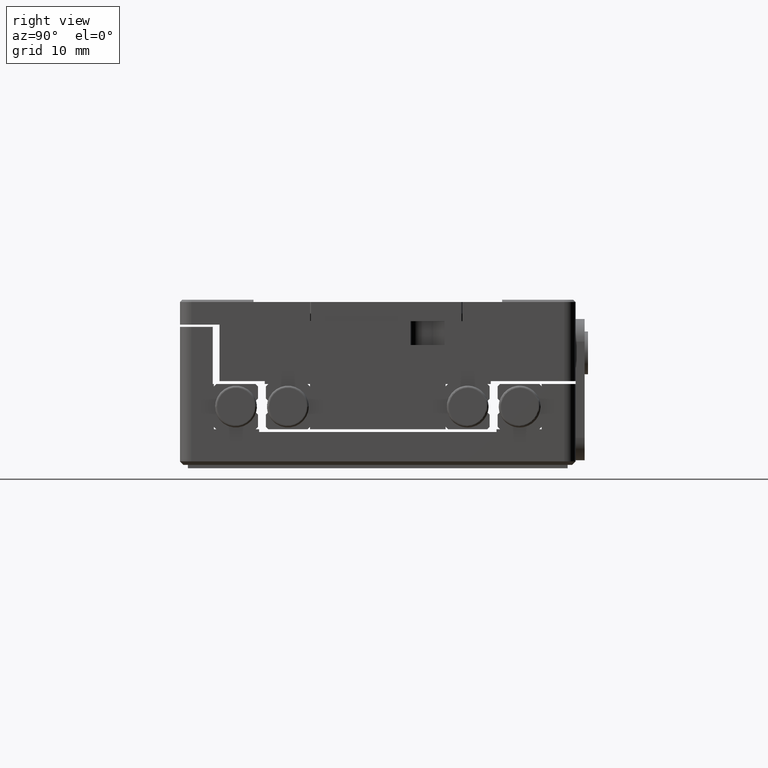
[diagram: clean part render]
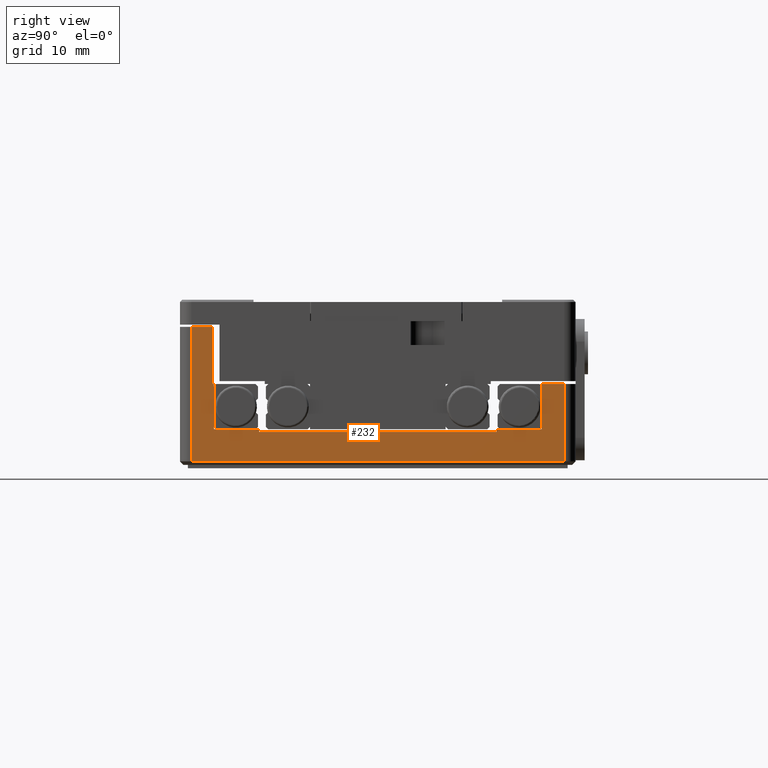
[diagram: same view with one face highlighted and labeled with its STEP entity id]
A machine part, right view. The second image highlights one B-rep face of the part: STEP entity #232.
In plain terms, the highlighted planar face has unit normal (-1, 0, 0).
Its self-contained STEP definition (entity closure, byte-faithful):
#29 = LINE ( 'NONE', #8523, #1363 ) ;
#118 = CARTESIAN_POINT ( 'NONE',  ( 22.62210796915164934, -9.299999999999998934, -12.81748071979434123 ) ) ;
#219 = ORIENTED_EDGE ( 'NONE', *, *, #991, .F. ) ;
#232 = ADVANCED_FACE ( 'NONE', ( #13400 ), #6190, .F. ) ;
#247 = ORIENTED_EDGE ( 'NONE', *, *, #7964, .T. ) ;
#390 = VERTEX_POINT ( 'NONE', #11079 ) ;
#558 = LINE ( 'NONE', #13275, #6235 ) ;
#789 = LINE ( 'NONE', #2952, #7090 ) ;
#894 = ORIENTED_EDGE ( 'NONE', *, *, #9990, .F. ) ;
#991 = EDGE_CURVE ( 'NONE', #5737, #13536, #5608, .T. ) ;
#1162 = ORIENTED_EDGE ( 'NONE', *, *, #13463, .T. ) ;
#1303 = CARTESIAN_POINT ( 'NONE',  ( 22.62210796915164934, -4.250000000000000000, -10.91748071979434087 ) ) ;
#1363 = VECTOR ( 'NONE', #5129, 1000.000000000000000 ) ;
#1501 = VECTOR ( 'NONE', #10459, 1000.000000000000000 ) ;
#1607 = LINE ( 'NONE', #2591, #8107 ) ;
#1941 = CARTESIAN_POINT ( 'NONE',  ( 22.62210796915164934, -4.250000000000000000, 20.18251928020564989 ) ) ;
#2028 = EDGE_CURVE ( 'NONE', #4132, #10417, #5076, .T. ) ;
#2029 = CARTESIAN_POINT ( 'NONE',  ( 22.62210796915164934, -0.2500000000000000000, -10.81748071979434123 ) ) ;
#2102 = DIRECTION ( 'NONE',  ( 0.000000000000000000, 0.000000000000000000, 1.000000000000000000 ) ) ;
#2119 = VERTEX_POINT ( 'NONE', #6328 ) ;
#2243 = ORIENTED_EDGE ( 'NONE', *, *, #9742, .F. ) ;
#2440 = CARTESIAN_POINT ( 'NONE',  ( 22.62210796915164934, -0.2500000000000000000, 14.18251928020566055 ) ) ;
#2545 = VECTOR ( 'NONE', #13086, 1000.000000000000000 ) ;
#2571 = VERTEX_POINT ( 'NONE', #10154 ) ;
#2591 = CARTESIAN_POINT ( 'NONE',  ( 22.62210796915164934, -0.2500000000000000000, -6.817480719794350108 ) ) ;
#2717 = VECTOR ( 'NONE', #8568, 1000.000000000000000 ) ;
#2723 = ORIENTED_EDGE ( 'NONE', *, *, #4149, .T. ) ;
#2910 = CARTESIAN_POINT ( 'NONE',  ( 22.62210796915164934, -4.250000000000000000, -10.91748071979434087 ) ) ;
#2952 = CARTESIAN_POINT ( 'NONE',  ( 22.62210796915164934, 2.600000000000000089, 20.18251928020564989 ) ) ;
#2979 = EDGE_LOOP ( 'NONE', ( #7369, #1162, #219, #247, #2723, #5383, #4268, #13100, #6668, #4868, #10766, #2243, #894, #8303 ) ) ;
#3159 = VECTOR ( 'NONE', #13678, 1000.000000000000000 ) ;
#3240 = CARTESIAN_POINT ( 'NONE',  ( 22.62210796915164934, -0.2500000000000000000, 18.18251928020564989 ) ) ;
#3335 = VECTOR ( 'NONE', #13438, 1000.000000000000000 ) ;
#3583 = CARTESIAN_POINT ( 'NONE',  ( 22.62210796915164934, -4.250000000000000000, 18.18251928020564989 ) ) ;
#3680 = VECTOR ( 'NONE', #6689, 1000.000000000000000 ) ;
#3698 = VERTEX_POINT ( 'NONE', #9216 ) ;
#3728 = DIRECTION ( 'NONE',  ( 0.000000000000000000, 1.000000000000000000, 0.000000000000000000 ) ) ;
#3758 = LINE ( 'NONE', #6889, #5037 ) ;
#3772 = DIRECTION ( 'NONE',  ( 0.000000000000000000, 1.000000000000000000, 0.000000000000000000 ) ) ;
#4132 = VERTEX_POINT ( 'NONE', #10310 ) ;
#4149 = EDGE_CURVE ( 'NONE', #13707, #4132, #789, .T. ) ;
#4268 = ORIENTED_EDGE ( 'NONE', *, *, #9825, .F. ) ;
#4556 = CARTESIAN_POINT ( 'NONE',  ( 22.62210796915164934, -0.2500000000000000000, -6.817480719794350108 ) ) ;
#4608 = LINE ( 'NONE', #7784, #2717 ) ;
#4675 = DIRECTION ( 'NONE',  ( 0.000000000000000000, 0.000000000000000000, -1.000000000000000000 ) ) ;
#4825 = AXIS2_PLACEMENT_3D ( 'NONE', #12562, #12349, #8188 ) ;
#4868 = ORIENTED_EDGE ( 'NONE', *, *, #10071, .T. ) ;
#4917 = LINE ( 'NONE', #3583, #4944 ) ;
#4944 = VECTOR ( 'NONE', #3728, 1000.000000000000000 ) ;
#5023 = VECTOR ( 'NONE', #9044, 1000.000000000000000 ) ;
#5037 = VECTOR ( 'NONE', #4675, 1000.000000000000000 ) ;
#5076 = LINE ( 'NONE', #6131, #3159 ) ;
#5129 = DIRECTION ( 'NONE',  ( 0.000000000000000000, -1.000000000000000000, 0.000000000000000000 ) ) ;
#5383 = ORIENTED_EDGE ( 'NONE', *, *, #2028, .T. ) ;
#5597 = EDGE_CURVE ( 'NONE', #11971, #2571, #6188, .T. ) ;
#5608 = LINE ( 'NONE', #9832, #2545 ) ;
#5737 = VERTEX_POINT ( 'NONE', #118 ) ;
#6010 = CARTESIAN_POINT ( 'NONE',  ( 22.62210796915164934, -4.250000000000000000, 18.18251928020564989 ) ) ;
#6131 = CARTESIAN_POINT ( 'NONE',  ( 22.62210796915164934, 2.899999999999999911, 20.18251928020564989 ) ) ;
#6188 = LINE ( 'NONE', #2910, #1501 ) ;
#6190 = PLANE ( 'NONE',  #4825 ) ;
#6235 = VECTOR ( 'NONE', #3772, 1000.000000000000000 ) ;
#6328 = CARTESIAN_POINT ( 'NONE',  ( 22.62210796915164934, 0.000000000000000000, -6.817480719794350108 ) ) ;
#6524 = CARTESIAN_POINT ( 'NONE',  ( 22.62210796915164934, -9.299999999999998934, -10.91748071979434087 ) ) ;
#6668 = ORIENTED_EDGE ( 'NONE', *, *, #11514, .F. ) ;
#6689 = DIRECTION ( 'NONE',  ( 0.000000000000000000, 1.000000000000000000, 0.000000000000000000 ) ) ;
#6889 = CARTESIAN_POINT ( 'NONE',  ( 22.62210796915164934, 0.000000000000000000, 21.18251928020564989 ) ) ;
#6981 = LINE ( 'NONE', #6010, #5023 ) ;
#7090 = VECTOR ( 'NONE', #7200, 1000.000000000000000 ) ;
#7200 = DIRECTION ( 'NONE',  ( 0.000000000000000000, 0.000000000000000000, 1.000000000000000000 ) ) ;
#7319 = LINE ( 'NONE', #2029, #10540 ) ;
#7369 = ORIENTED_EDGE ( 'NONE', *, *, #5597, .F. ) ;
#7784 = CARTESIAN_POINT ( 'NONE',  ( 22.62210796915164934, -0.2500000000000000000, 18.18251928020564989 ) ) ;
#7964 = EDGE_CURVE ( 'NONE', #5737, #13707, #11347, .T. ) ;
#8107 = VECTOR ( 'NONE', #12381, 1000.000000000000000 ) ;
#8121 = VERTEX_POINT ( 'NONE', #3240 ) ;
#8188 = DIRECTION ( 'NONE',  ( 0.000000000000000000, 0.000000000000000000, 1.000000000000000000 ) ) ;
#8286 = EDGE_CURVE ( 'NONE', #2571, #11527, #558, .T. ) ;
#8303 = ORIENTED_EDGE ( 'NONE', *, *, #8286, .F. ) ;
#8523 = CARTESIAN_POINT ( 'NONE',  ( 22.62210796915164934, -4.250000000000000000, -10.91748071979434087 ) ) ;
#8568 = DIRECTION ( 'NONE',  ( 0.000000000000000000, 0.000000000000000000, 1.000000000000000000 ) ) ;
#9044 = DIRECTION ( 'NONE',  ( 0.000000000000000000, 0.000000000000000000, 1.000000000000000000 ) ) ;
#9216 = CARTESIAN_POINT ( 'NONE',  ( 22.62210796915164934, 0.000000000000000000, 14.18251928020563923 ) ) ;
#9679 = VERTEX_POINT ( 'NONE', #4556 ) ;
#9742 = EDGE_CURVE ( 'NONE', #9679, #2119, #1607, .T. ) ;
#9825 = EDGE_CURVE ( 'NONE', #390, #10417, #6981, .T. ) ;
#9832 = CARTESIAN_POINT ( 'NONE',  ( 22.62210796915164934, -9.299999999999998934, -13.81748071979434123 ) ) ;
#9990 = EDGE_CURVE ( 'NONE', #11527, #9679, #7319, .T. ) ;
#10071 = EDGE_CURVE ( 'NONE', #12048, #3698, #10638, .T. ) ;
#10154 = CARTESIAN_POINT ( 'NONE',  ( 22.62210796915164934, -4.250000000000000000, -10.81748071979434123 ) ) ;
#10223 = EDGE_CURVE ( 'NONE', #3698, #2119, #3758, .T. ) ;
#10310 = CARTESIAN_POINT ( 'NONE',  ( 22.62210796915164934, 2.600000000000000089, 20.18251928020564989 ) ) ;
#10417 = VERTEX_POINT ( 'NONE', #1941 ) ;
#10459 = DIRECTION ( 'NONE',  ( 0.000000000000000000, 0.000000000000000000, 1.000000000000000000 ) ) ;
#10540 = VECTOR ( 'NONE', #2102, 1000.000000000000000 ) ;
#10638 = LINE ( 'NONE', #2440, #3680 ) ;
#10766 = ORIENTED_EDGE ( 'NONE', *, *, #10223, .T. ) ;
#11079 = CARTESIAN_POINT ( 'NONE',  ( 22.62210796915164934, -4.250000000000000000, 18.18251928020564989 ) ) ;
#11290 = CARTESIAN_POINT ( 'NONE',  ( 22.62210796915164934, 2.600000000000000089, -12.81748071979434123 ) ) ;
#11347 = LINE ( 'NONE', #12328, #3335 ) ;
#11514 = EDGE_CURVE ( 'NONE', #12048, #8121, #4608, .T. ) ;
#11527 = VERTEX_POINT ( 'NONE', #13413 ) ;
#11971 = VERTEX_POINT ( 'NONE', #1303 ) ;
#11998 = CARTESIAN_POINT ( 'NONE',  ( 22.62210796915164934, -0.2500000000000000000, 14.18251928020566055 ) ) ;
#12048 = VERTEX_POINT ( 'NONE', #11998 ) ;
#12328 = CARTESIAN_POINT ( 'NONE',  ( 22.62210796915164934, 2.899999999999999911, -12.81748071979434123 ) ) ;
#12349 = DIRECTION ( 'NONE',  ( -1.000000000000000000, 0.000000000000000000, 0.000000000000000000 ) ) ;
#12381 = DIRECTION ( 'NONE',  ( 0.000000000000000000, 1.000000000000000000, 0.000000000000000000 ) ) ;
#12562 = CARTESIAN_POINT ( 'NONE',  ( 22.62210796915164934, 2.899999999999999911, 21.18251928020564989 ) ) ;
#13086 = DIRECTION ( 'NONE',  ( 0.000000000000000000, 0.000000000000000000, 1.000000000000000000 ) ) ;
#13100 = ORIENTED_EDGE ( 'NONE', *, *, #13644, .T. ) ;
#13275 = CARTESIAN_POINT ( 'NONE',  ( 22.62210796915164934, -9.299999999999998934, -10.81748071979434123 ) ) ;
#13400 = FACE_OUTER_BOUND ( 'NONE', #2979, .T. ) ;
#13413 = CARTESIAN_POINT ( 'NONE',  ( 22.62210796915164934, -0.2500000000000000000, -10.81748071979434123 ) ) ;
#13438 = DIRECTION ( 'NONE',  ( 0.000000000000000000, 1.000000000000000000, 0.000000000000000000 ) ) ;
#13463 = EDGE_CURVE ( 'NONE', #11971, #13536, #29, .T. ) ;
#13536 = VERTEX_POINT ( 'NONE', #6524 ) ;
#13644 = EDGE_CURVE ( 'NONE', #390, #8121, #4917, .T. ) ;
#13678 = DIRECTION ( 'NONE',  ( 0.000000000000000000, -1.000000000000000000, 0.000000000000000000 ) ) ;
#13707 = VERTEX_POINT ( 'NONE', #11290 ) ;